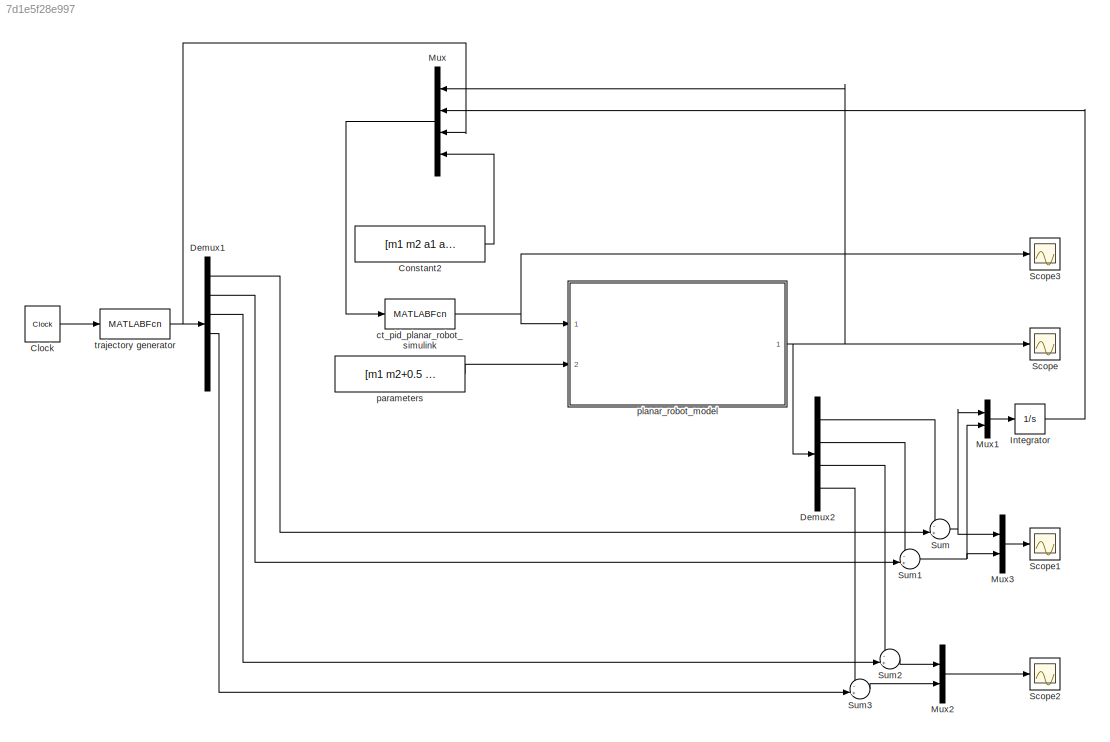
MODEL slx_7d1e5f28e997
KIND model
CONFIG AbsTol = auto
CONFIG FixedStep = 0.001
CONFIG MaxStep = auto
CONFIG MinStep = auto
CONFIG RelTol = 1e-3
CONFIG SampleTimeConstraint = Unconstrained
CONFIG Solver = FixedStepAuto
CONFIG SolverMode = Auto
CONFIG SolverName = FixedStepAuto
CONFIG StartTime = 0.0
CONFIG StopTime = 10
BLOCK [Clock] Clock
BLOCK [Constant] Constant2
  Value = [m1 m2 a1 a2 g]
BLOCK [Demux] Demux1
  DisplayOption = bar
  Outputs = 6
  Ports = [1, 6]
BLOCK [Demux] Demux2
  DisplayOption = bar
  Ports = [1, 4]
BLOCK [Integrator] Integrator
  Ports = [1, 1]
BLOCK [Mux] Mux
  DisplayOption = bar
  Ports = [4, 1]
BLOCK [Mux] Mux1
  DisplayOption = bar
  Inputs = 2
  Ports = [2, 1]
BLOCK [Mux] Mux2
  DisplayOption = bar
  Inputs = 2
  Ports = [2, 1]
BLOCK [Mux] Mux3
  DisplayOption = bar
  Inputs = 2
  Ports = [2, 1]
BLOCK [Scope] Scope
  Ports = [1]
  ScopeSpecificationString = Simulink.scopes.TimeScopeBlockCfg('CurrentConfiguration', extmgr.ConfigurationSet(extmgr.Configuration('Core','General UI',true),extmgr.Configuration('Core','Source UI',true),extmgr.Configuration('Sources','WiredSimulink',true,'DataLoggingSaveFormat','Array','DataLoggingDecimation','1','DataLoggingDecimateData',true,'DataLoggingVariableName','ScopeData1'),extmgr.Configuration('Visuals','Time Domai...<+1761ch>
BLOCK [Scope] Scope1
  Ports = [1]
  ScopeSpecificationString = Simulink.scopes.TimeScopeBlockCfg('CurrentConfiguration', extmgr.ConfigurationSet(extmgr.Configuration('Core','General UI',true),extmgr.Configuration('Core','Source UI',true),extmgr.Configuration('Sources','WiredSimulink',true,'DataLoggingSaveFormat','Array','DataLoggingDecimation','1','DataLoggingDecimateData',true,'DataLoggingVariableName','ScopeData1'),extmgr.Configuration('Visuals','Time Domai...<+1683ch>
BLOCK [Scope] Scope2
  Ports = [1]
  ScopeSpecificationString = Simulink.scopes.TimeScopeBlockCfg('CurrentConfiguration', extmgr.ConfigurationSet(extmgr.Configuration('Core','General UI',true),extmgr.Configuration('Core','Source UI',true),extmgr.Configuration('Sources','WiredSimulink',true,'DataLoggingSaveFormat','Array','DataLoggingDecimation','1','DataLoggingDecimateData',true,'DataLoggingVariableName','ScopeData2'),extmgr.Configuration('Visuals','Time Domai...<+1680ch>
BLOCK [Scope] Scope3
  Ports = [1]
  ScopeSpecificationString = Simulink.scopes.TimeScopeBlockCfg('CurrentConfiguration', extmgr.ConfigurationSet(extmgr.Configuration('Core','General UI',true),extmgr.Configuration('Core','Source UI',true),extmgr.Configuration('Sources','WiredSimulink',true,'DataLoggingSaveFormat','Array','DataLoggingDecimation','1','DataLoggingDecimateData',true,'DataLoggingVariableName','ScopeData3'),extmgr.Configuration('Visuals','Time Domai...<+1739ch>
BLOCK [Sum] Sum
  IconShape = round
  InputSameDT = off
  Inputs = -+|
  OutDataTypeStr = Inherit: Inherit via internal rule
  Ports = [2, 1]
  SaturateOnIntegerOverflow = off
BLOCK [Sum] Sum1
  IconShape = round
  InputSameDT = off
  Inputs = -+|
  OutDataTypeStr = Inherit: Inherit via internal rule
  Ports = [2, 1]
  SaturateOnIntegerOverflow = off
BLOCK [Sum] Sum2
  IconShape = round
  InputSameDT = off
  Inputs = -+|
  OutDataTypeStr = Inherit: Inherit via internal rule
  Ports = [2, 1]
  SaturateOnIntegerOverflow = off
BLOCK [Sum] Sum3
  IconShape = round
  InputSameDT = off
  Inputs = -+|
  OutDataTypeStr = Inherit: Inherit via internal rule
  Ports = [2, 1]
  SaturateOnIntegerOverflow = off
BLOCK [MATLABFcn] ct_pid_planar_robot_simulink
  MATLABFcn = ct_pid_planar_robot_simulink
  Ports = [1, 1]
BLOCK [Constant] parameters
  Value = [m1 m2+0.5 a1 a2 g]
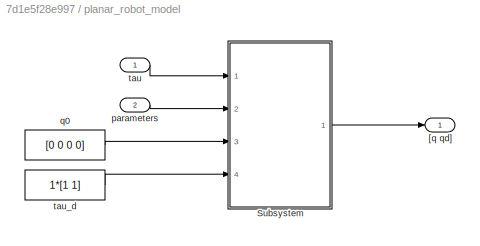
BLOCK [SubSystem] planar_robot_model
  Ports = [2, 1]
  RequestExecContextInheritance = off
  Variant = off
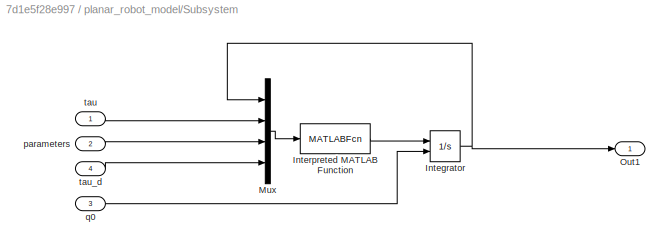
BLOCK [SubSystem] planar_robot_model/Subsystem
  Ports = [4, 1]
  RequestExecContextInheritance = off
  Variant = off
BLOCK [Integrator] planar_robot_model/Subsystem/Integrator
  InitialConditionSource = external
  Ports = [2, 1]
BLOCK [MATLABFcn] planar_robot_model/Subsystem/Interpreted MATLAB Function
  MATLABFcn = planar_robot_simulink
  OutputDimensions = 4
  Ports = [1, 1]
BLOCK [Mux] planar_robot_model/Subsystem/Mux
  DisplayOption = bar
  Ports = [4, 1]
BLOCK [Outport] planar_robot_model/Subsystem/Out1
  IconDisplay = Port number
BLOCK [Inport] planar_robot_model/Subsystem/parameters
  IconDisplay = Port number
  Port = 2
BLOCK [Inport] planar_robot_model/Subsystem/q0
  IconDisplay = Port number
  Port = 3
BLOCK [Inport] planar_robot_model/Subsystem/tau
  IconDisplay = Port number
BLOCK [Inport] planar_robot_model/Subsystem/tau_d
  IconDisplay = Port number
  Port = 4
BLOCK [Outport] planar_robot_model/[q qd]
  IconDisplay = Port number
BLOCK [Inport] planar_robot_model/parameters
  IconDisplay = Port number
  Port = 2
BLOCK [Constant] planar_robot_model/q0
  Value = [0 0 0 0]
BLOCK [Inport] planar_robot_model/tau
  IconDisplay = Port number
BLOCK [Constant] planar_robot_model/tau_d
  Value = 1*[1 1]
BLOCK [MATLABFcn] trajectory generator
  MATLABFcn = trajectory_planar_robot_simulink
  Ports = [1, 1]
LINE Clock:1 -> trajectory generator:1
LINE Constant2:1 -> Mux:4
LINE Demux1:1 -> Sum:2
LINE Demux1:2 -> Sum1:2
LINE Demux1:3 -> Sum2:2
LINE Demux1:4 -> Sum3:2
LINE Demux2:1 -> Sum:1
LINE Demux2:2 -> Sum1:1
LINE Demux2:3 -> Sum2:1
LINE Demux2:4 -> Sum3:1
LINE Integrator:1 -> Mux:2
LINE Mux1:1 -> Integrator:1
LINE Mux2:1 -> Scope2:1
LINE Mux3:1 -> Scope1:1
LINE Mux:1 -> ct_pid_planar_robot_simulink:1
NET Sum1:1 -> Mux1:2, Mux3:2
LINE Sum2:1 -> Mux2:1
LINE Sum3:1 -> Mux2:2
NET Sum:1 -> Mux1:1, Mux3:1
NET ct_pid_planar_robot_simulink:1 -> Scope3:1, planar_robot_model:1
LINE parameters:1 -> planar_robot_model:2
NET planar_robot_model/Subsystem/Integrator:1 -> planar_robot_model/Subsystem/Mux:1, planar_robot_model/Subsystem/Out1:1
LINE planar_robot_model/Subsystem/Interpreted MATLAB Function:1 -> planar_robot_model/Subsystem/Integrator:1
LINE planar_robot_model/Subsystem/Mux:1 -> planar_robot_model/Subsystem/Interpreted MATLAB Function:1
LINE planar_robot_model/Subsystem/parameters:1 -> planar_robot_model/Subsystem/Mux:3
LINE planar_robot_model/Subsystem/q0:1 -> planar_robot_model/Subsystem/Integrator:2
LINE planar_robot_model/Subsystem/tau:1 -> planar_robot_model/Subsystem/Mux:2
LINE planar_robot_model/Subsystem/tau_d:1 -> planar_robot_model/Subsystem/Mux:4
LINE planar_robot_model/Subsystem:1 -> planar_robot_model/[q qd]:1
LINE planar_robot_model/parameters:1 -> planar_robot_model/Subsystem:2
LINE planar_robot_model/q0:1 -> planar_robot_model/Subsystem:3
LINE planar_robot_model/tau:1 -> planar_robot_model/Subsystem:1
LINE planar_robot_model/tau_d:1 -> planar_robot_model/Subsystem:4
NET planar_robot_model:1 -> Demux2:1, Mux:1, Scope:1
NET trajectory generator:1 -> Demux1:1, Mux:3
note: NET lines group one-source signal fan-out (src -> all destinations, sorted); 1:1 wires keep LINE
